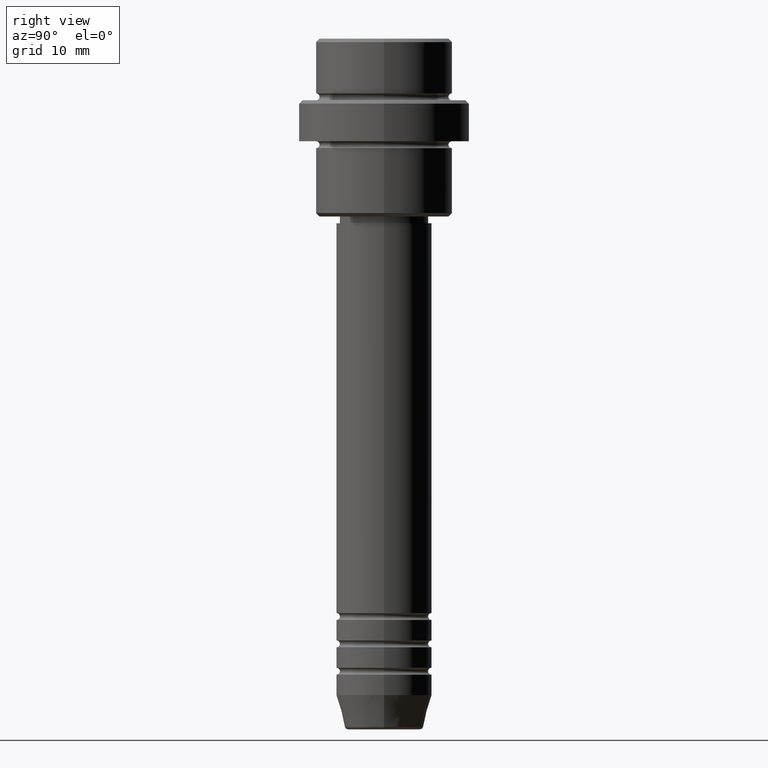
[diagram: clean part render]
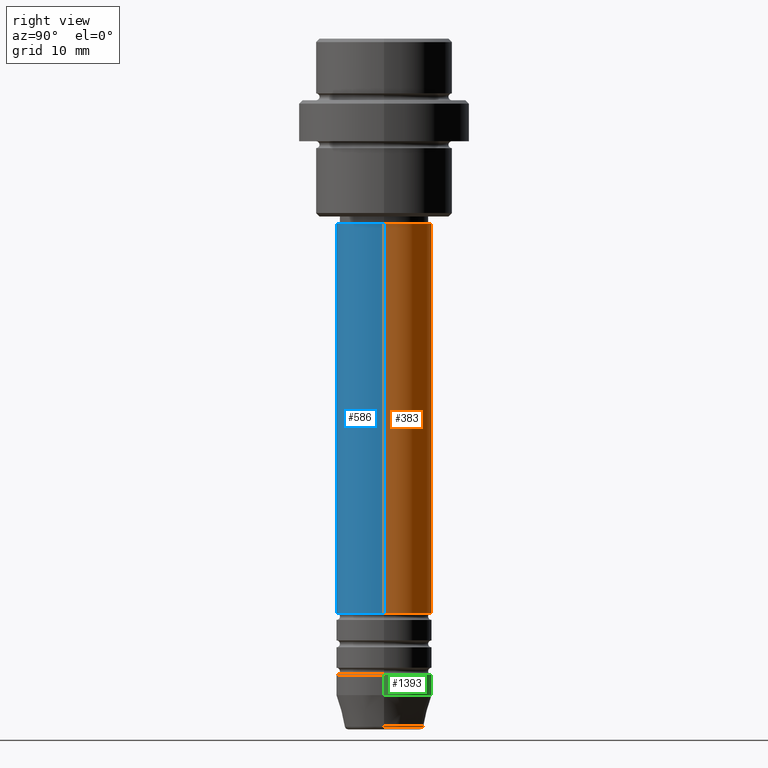
[diagram: same view with three faces highlighted in distinct colors, each labeled with its STEP entity id]
A machine part, right view with three faces highlighted in distinct colors.
Their STEP definitions:

[orange] entity #383 — the highlighted cylindrical surface (partial cylindrical patch) has radius 7 mm, axis along (-0, -0, 1).
#59 = VECTOR ( 'NONE', #269, 1000.000000000000000 ) ;
#79 = AXIS2_PLACEMENT_3D ( 'NONE', #545, #516, #966 ) ;
#107 = VERTEX_POINT ( 'NONE', #1257 ) ;
#133 = CARTESIAN_POINT ( 'NONE',  ( 0.000000000000000000, 0.000000000000000000, -27.00000000000000355 ) ) ;
#173 = CIRCLE ( 'NONE', #79, 7.000000000000000000 ) ;
#186 = AXIS2_PLACEMENT_3D ( 'NONE', #133, #1344, #1037 ) ;
#254 = CARTESIAN_POINT ( 'NONE',  ( 7.000000000000000000, 0.000000000000000000, -83.99999999999988631 ) ) ;
#269 = DIRECTION ( 'NONE',  ( -0.000000000000000000, -0.000000000000000000, 1.000000000000000000 ) ) ;
#282 = DIRECTION ( 'NONE',  ( -0.000000000000000000, -0.000000000000000000, 1.000000000000000000 ) ) ;
#287 = CIRCLE ( 'NONE', #186, 7.000000000000000000 ) ;
#310 = ORIENTED_EDGE ( 'NONE', *, *, #411, .F. ) ;
#319 = CYLINDRICAL_SURFACE ( 'NONE', #435, 7.000000000000000000 ) ;
#328 = VECTOR ( 'NONE', #282, 1000.000000000000000 ) ;
#383 = ADVANCED_FACE ( 'NONE', ( #637 ), #319, .T. ) ;
#396 = VERTEX_POINT ( 'NONE', #1081 ) ;
#411 = EDGE_CURVE ( 'NONE', #396, #565, #287, .T. ) ;
#435 = AXIS2_PLACEMENT_3D ( 'NONE', #1108, #900, #1326 ) ;
#449 = VERTEX_POINT ( 'NONE', #254 ) ;
#469 = LINE ( 'NONE', #1027, #59 ) ;
#491 = CARTESIAN_POINT ( 'NONE',  ( -7.000000000000000000, 8.572527594031473190E-16, 0.000000000000000000 ) ) ;
#512 = LINE ( 'NONE', #491, #328 ) ;
#515 = EDGE_LOOP ( 'NONE', ( #721, #765, #310, #641 ) ) ;
#516 = DIRECTION ( 'NONE',  ( -0.000000000000000000, -0.000000000000000000, 1.000000000000000000 ) ) ;
#545 = CARTESIAN_POINT ( 'NONE',  ( 0.000000000000000000, 0.000000000000000000, -83.99999999999988631 ) ) ;
#565 = VERTEX_POINT ( 'NONE', #1050 ) ;
#617 = EDGE_CURVE ( 'NONE', #107, #565, #512, .T. ) ;
#637 = FACE_OUTER_BOUND ( 'NONE', #515, .T. ) ;
#641 = ORIENTED_EDGE ( 'NONE', *, *, #895, .F. ) ;
#721 = ORIENTED_EDGE ( 'NONE', *, *, #1276, .T. ) ;
#765 = ORIENTED_EDGE ( 'NONE', *, *, #617, .T. ) ;
#895 = EDGE_CURVE ( 'NONE', #449, #396, #469, .T. ) ;
#900 = DIRECTION ( 'NONE',  ( -0.000000000000000000, -0.000000000000000000, 1.000000000000000000 ) ) ;
#966 = DIRECTION ( 'NONE',  ( 1.000000000000000000, 0.000000000000000000, 0.000000000000000000 ) ) ;
#1027 = CARTESIAN_POINT ( 'NONE',  ( 7.000000000000000000, 0.000000000000000000, 0.000000000000000000 ) ) ;
#1037 = DIRECTION ( 'NONE',  ( 1.000000000000000000, 0.000000000000000000, 0.000000000000000000 ) ) ;
#1050 = CARTESIAN_POINT ( 'NONE',  ( -7.000000000000000000, 8.572527594031473190E-16, -27.00000000000000355 ) ) ;
#1081 = CARTESIAN_POINT ( 'NONE',  ( 7.000000000000000000, 0.000000000000000000, -27.00000000000000355 ) ) ;
#1108 = CARTESIAN_POINT ( 'NONE',  ( 0.000000000000000000, 0.000000000000000000, 0.000000000000000000 ) ) ;
#1257 = CARTESIAN_POINT ( 'NONE',  ( -7.000000000000000000, 8.572527594031473190E-16, -83.99999999999988631 ) ) ;
#1276 = EDGE_CURVE ( 'NONE', #449, #107, #173, .T. ) ;
#1326 = DIRECTION ( 'NONE',  ( 1.000000000000000000, 0.000000000000000000, 0.000000000000000000 ) ) ;
#1344 = DIRECTION ( 'NONE',  ( -0.000000000000000000, -0.000000000000000000, 1.000000000000000000 ) ) ;

[blue] entity #586 — the highlighted cylindrical surface (partial cylindrical patch) has radius 7 mm, axis along (-0, -0, 1).
#59 = VECTOR ( 'NONE', #269, 1000.000000000000000 ) ;
#60 = CARTESIAN_POINT ( 'NONE',  ( 0.000000000000000000, 0.000000000000000000, 0.000000000000000000 ) ) ;
#81 = EDGE_LOOP ( 'NONE', ( #1391, #86, #856, #320 ) ) ;
#86 = ORIENTED_EDGE ( 'NONE', *, *, #1223, .T. ) ;
#107 = VERTEX_POINT ( 'NONE', #1257 ) ;
#188 = DIRECTION ( 'NONE',  ( -0.000000000000000000, -0.000000000000000000, 1.000000000000000000 ) ) ;
#254 = CARTESIAN_POINT ( 'NONE',  ( 7.000000000000000000, 0.000000000000000000, -83.99999999999988631 ) ) ;
#269 = DIRECTION ( 'NONE',  ( -0.000000000000000000, -0.000000000000000000, 1.000000000000000000 ) ) ;
#282 = DIRECTION ( 'NONE',  ( -0.000000000000000000, -0.000000000000000000, 1.000000000000000000 ) ) ;
#320 = ORIENTED_EDGE ( 'NONE', *, *, #1328, .F. ) ;
#328 = VECTOR ( 'NONE', #282, 1000.000000000000000 ) ;
#393 = FACE_OUTER_BOUND ( 'NONE', #81, .T. ) ;
#396 = VERTEX_POINT ( 'NONE', #1081 ) ;
#449 = VERTEX_POINT ( 'NONE', #254 ) ;
#451 = CARTESIAN_POINT ( 'NONE',  ( 0.000000000000000000, 0.000000000000000000, -27.00000000000000355 ) ) ;
#469 = LINE ( 'NONE', #1027, #59 ) ;
#488 = AXIS2_PLACEMENT_3D ( 'NONE', #451, #683, #667 ) ;
#491 = CARTESIAN_POINT ( 'NONE',  ( -7.000000000000000000, 8.572527594031473190E-16, 0.000000000000000000 ) ) ;
#512 = LINE ( 'NONE', #491, #328 ) ;
#558 = CIRCLE ( 'NONE', #1271, 7.000000000000000000 ) ;
#565 = VERTEX_POINT ( 'NONE', #1050 ) ;
#586 = ADVANCED_FACE ( 'NONE', ( #393 ), #620, .T. ) ;
#617 = EDGE_CURVE ( 'NONE', #107, #565, #512, .T. ) ;
#620 = CYLINDRICAL_SURFACE ( 'NONE', #841, 7.000000000000000000 ) ;
#667 = DIRECTION ( 'NONE',  ( 1.000000000000000000, 0.000000000000000000, 0.000000000000000000 ) ) ;
#683 = DIRECTION ( 'NONE',  ( -0.000000000000000000, -0.000000000000000000, 1.000000000000000000 ) ) ;
#841 = AXIS2_PLACEMENT_3D ( 'NONE', #60, #1160, #1177 ) ;
#856 = ORIENTED_EDGE ( 'NONE', *, *, #895, .T. ) ;
#895 = EDGE_CURVE ( 'NONE', #449, #396, #469, .T. ) ;
#981 = CARTESIAN_POINT ( 'NONE',  ( 0.000000000000000000, 0.000000000000000000, -83.99999999999988631 ) ) ;
#1027 = CARTESIAN_POINT ( 'NONE',  ( 7.000000000000000000, 0.000000000000000000, 0.000000000000000000 ) ) ;
#1050 = CARTESIAN_POINT ( 'NONE',  ( -7.000000000000000000, 8.572527594031473190E-16, -27.00000000000000355 ) ) ;
#1071 = DIRECTION ( 'NONE',  ( 1.000000000000000000, 0.000000000000000000, 0.000000000000000000 ) ) ;
#1081 = CARTESIAN_POINT ( 'NONE',  ( 7.000000000000000000, 0.000000000000000000, -27.00000000000000355 ) ) ;
#1160 = DIRECTION ( 'NONE',  ( -0.000000000000000000, -0.000000000000000000, 1.000000000000000000 ) ) ;
#1177 = DIRECTION ( 'NONE',  ( 1.000000000000000000, 0.000000000000000000, 0.000000000000000000 ) ) ;
#1223 = EDGE_CURVE ( 'NONE', #107, #449, #558, .T. ) ;
#1257 = CARTESIAN_POINT ( 'NONE',  ( -7.000000000000000000, 8.572527594031473190E-16, -83.99999999999988631 ) ) ;
#1271 = AXIS2_PLACEMENT_3D ( 'NONE', #981, #188, #1071 ) ;
#1328 = EDGE_CURVE ( 'NONE', #565, #396, #1368, .T. ) ;
#1368 = CIRCLE ( 'NONE', #488, 7.000000000000000000 ) ;
#1391 = ORIENTED_EDGE ( 'NONE', *, *, #617, .F. ) ;

[green] entity #1393 — the highlighted cylindrical surface (partial cylindrical patch) has radius 7 mm, axis along (-0, -0, 1).
#61 = VECTOR ( 'NONE', #889, 1000.000000000000000 ) ;
#89 = ORIENTED_EDGE ( 'NONE', *, *, #1145, .F. ) ;
#120 = VERTEX_POINT ( 'NONE', #1148 ) ;
#125 = LINE ( 'NONE', #253, #1203 ) ;
#164 = EDGE_CURVE ( 'NONE', #1297, #1407, #284, .T. ) ;
#185 = DIRECTION ( 'NONE',  ( 1.000000000000000000, 0.000000000000000000, 0.000000000000000000 ) ) ;
#213 = CARTESIAN_POINT ( 'NONE',  ( 7.000000000000000000, 0.000000000000000000, 0.000000000000000000 ) ) ;
#253 = CARTESIAN_POINT ( 'NONE',  ( -7.000000000000000000, 8.572527594031473190E-16, 0.000000000000000000 ) ) ;
#262 = AXIS2_PLACEMENT_3D ( 'NONE', #716, #410, #1251 ) ;
#284 = CIRCLE ( 'NONE', #262, 7.000000000000000000 ) ;
#289 = ORIENTED_EDGE ( 'NONE', *, *, #624, .T. ) ;
#352 = CARTESIAN_POINT ( 'NONE',  ( 7.000000000000000000, 0.000000000000000000, -96.00000000000000000 ) ) ;
#410 = DIRECTION ( 'NONE',  ( -0.000000000000000000, -0.000000000000000000, 1.000000000000000000 ) ) ;
#443 = CARTESIAN_POINT ( 'NONE',  ( 0.000000000000000000, 0.000000000000000000, 0.000000000000000000 ) ) ;
#445 = VERTEX_POINT ( 'NONE', #352 ) ;
#457 = CARTESIAN_POINT ( 'NONE',  ( 7.000000000000000000, 0.000000000000000000, -93.00000000000000000 ) ) ;
#460 = CIRCLE ( 'NONE', #1265, 7.000000000000000000 ) ;
#562 = DIRECTION ( 'NONE',  ( -0.000000000000000000, -0.000000000000000000, 1.000000000000000000 ) ) ;
#585 = DIRECTION ( 'NONE',  ( -0.000000000000000000, -0.000000000000000000, 1.000000000000000000 ) ) ;
#624 = EDGE_CURVE ( 'NONE', #445, #120, #460, .T. ) ;
#646 = LINE ( 'NONE', #213, #61 ) ;
#654 = ORIENTED_EDGE ( 'NONE', *, *, #164, .F. ) ;
#661 = CARTESIAN_POINT ( 'NONE',  ( -7.000000000000000000, 8.572527594031473190E-16, -93.00000000000000000 ) ) ;
#677 = CYLINDRICAL_SURFACE ( 'NONE', #701, 7.000000000000000000 ) ;
#701 = AXIS2_PLACEMENT_3D ( 'NONE', #443, #585, #1123 ) ;
#716 = CARTESIAN_POINT ( 'NONE',  ( 0.000000000000000000, 0.000000000000000000, -93.00000000000000000 ) ) ;
#723 = CARTESIAN_POINT ( 'NONE',  ( 0.000000000000000000, 0.000000000000000000, -96.00000000000000000 ) ) ;
#741 = DIRECTION ( 'NONE',  ( -0.000000000000000000, -0.000000000000000000, 1.000000000000000000 ) ) ;
#879 = EDGE_LOOP ( 'NONE', ( #289, #921, #654, #89 ) ) ;
#889 = DIRECTION ( 'NONE',  ( -0.000000000000000000, -0.000000000000000000, 1.000000000000000000 ) ) ;
#921 = ORIENTED_EDGE ( 'NONE', *, *, #954, .T. ) ;
#954 = EDGE_CURVE ( 'NONE', #120, #1407, #125, .T. ) ;
#1034 = FACE_OUTER_BOUND ( 'NONE', #879, .T. ) ;
#1123 = DIRECTION ( 'NONE',  ( 1.000000000000000000, 0.000000000000000000, 0.000000000000000000 ) ) ;
#1145 = EDGE_CURVE ( 'NONE', #445, #1297, #646, .T. ) ;
#1148 = CARTESIAN_POINT ( 'NONE',  ( -7.000000000000000000, 8.572527594031473190E-16, -96.00000000000000000 ) ) ;
#1203 = VECTOR ( 'NONE', #562, 1000.000000000000000 ) ;
#1251 = DIRECTION ( 'NONE',  ( 1.000000000000000000, 0.000000000000000000, 0.000000000000000000 ) ) ;
#1265 = AXIS2_PLACEMENT_3D ( 'NONE', #723, #741, #185 ) ;
#1297 = VERTEX_POINT ( 'NONE', #457 ) ;
#1393 = ADVANCED_FACE ( 'NONE', ( #1034 ), #677, .T. ) ;
#1407 = VERTEX_POINT ( 'NONE', #661 ) ;